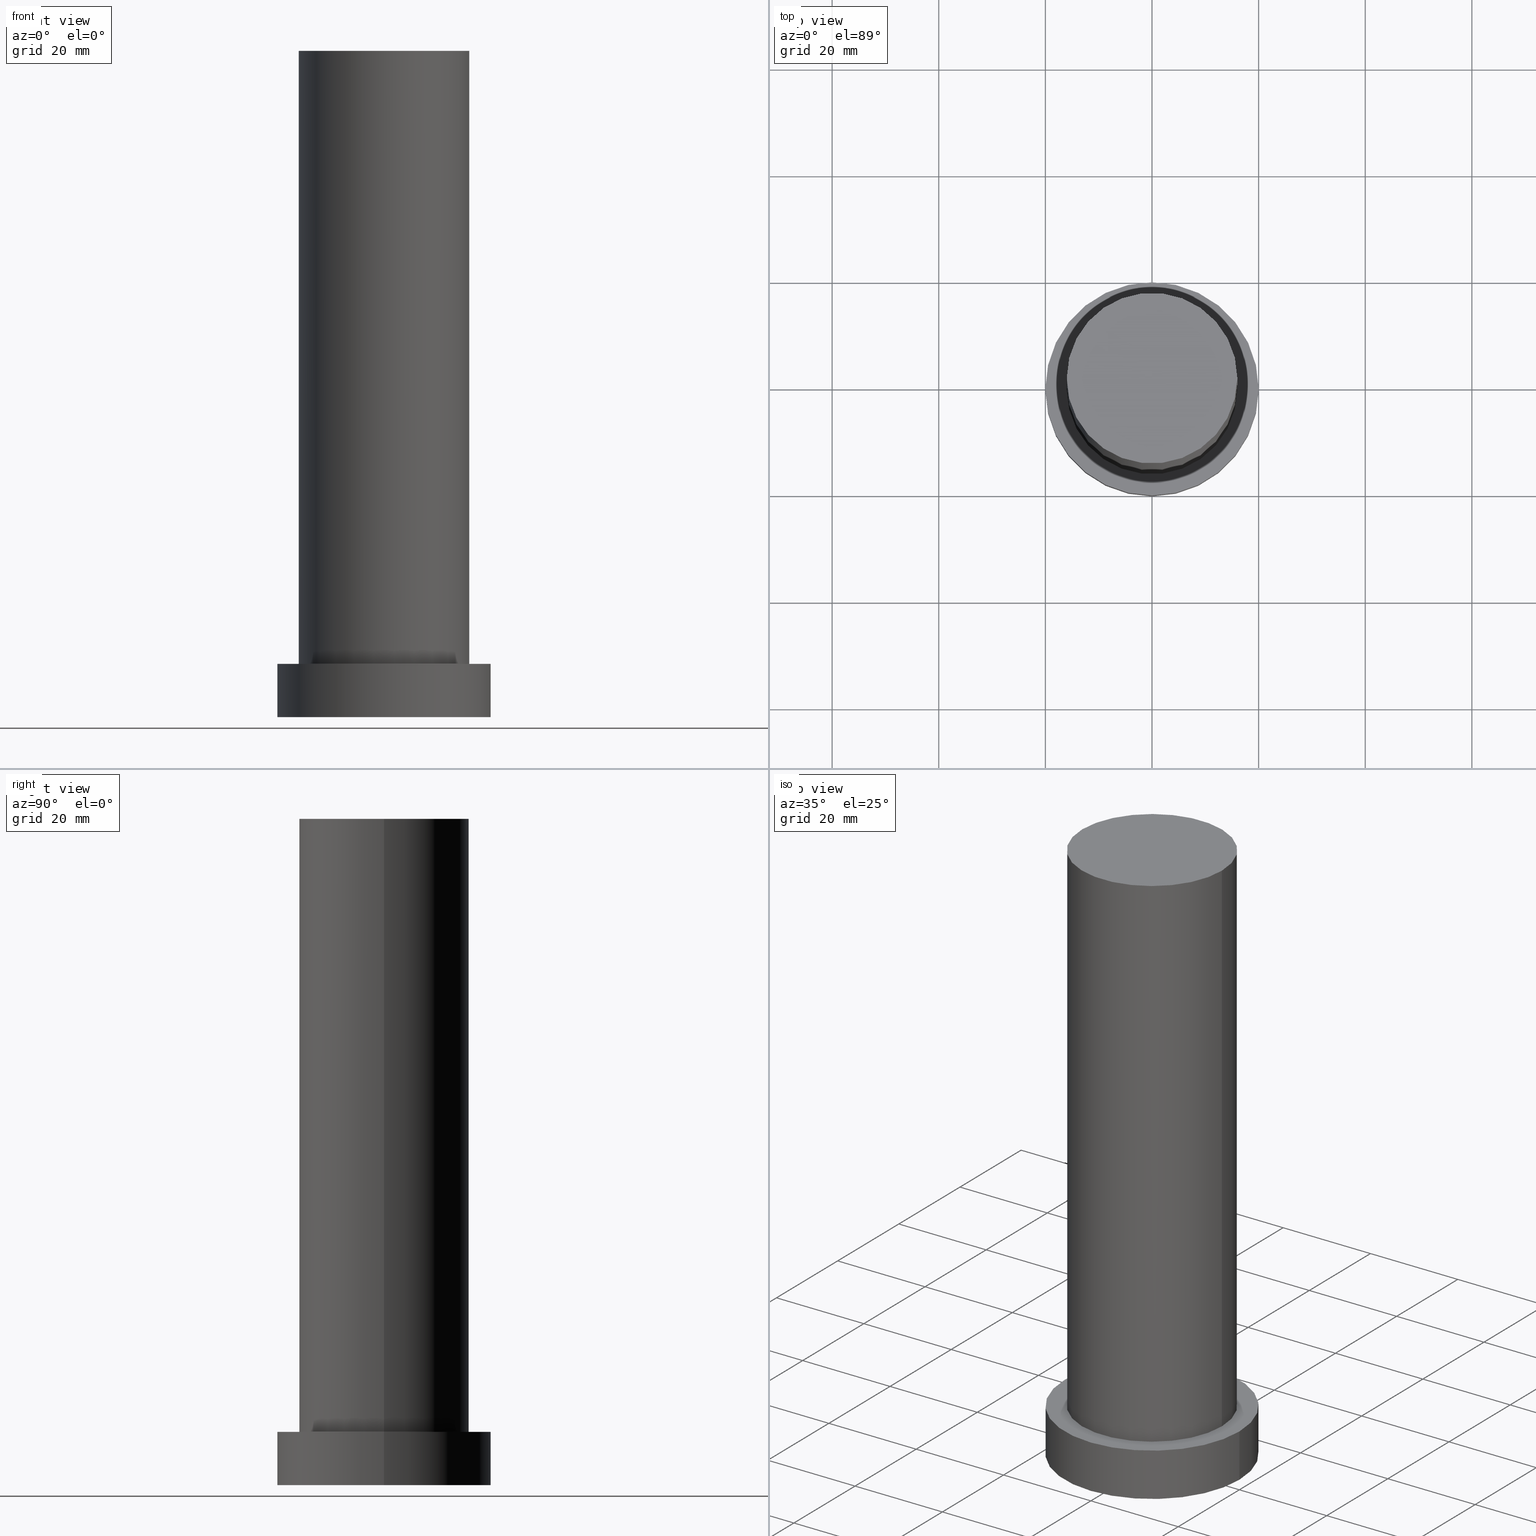
[diagram: canonical four-view strip — front | top / right | iso, engineering-drawing reading convention]
A machine part, canonical four-view strip (front | top / right | iso — engineering-drawing reading convention). The complete STEP part file that produces these views, byte-faithful:
ISO-10303-21;
HEADER;
FILE_DESCRIPTION (( 'STEP AP203' ),
    '1' );
FILE_NAME ('59e3.STEP',
    '2023-02-13T07:30:17',
    ( '' ),
    ( '' ),
    'SwSTEP 2.0',
    'SolidWorks 2019',
    '' );
FILE_SCHEMA (( 'CONFIG_CONTROL_DESIGN' ));
ENDSEC;

DATA;
#1 = LOCAL_TIME ( 8, 30, 17.00000000000000000, #212 ) ;
#2 = ORIENTED_EDGE ( 'NONE', *, *, #242, .F. ) ;
#3 = CARTESIAN_POINT ( 'NONE',  ( 20.00000000000000000, 2.449293598294706513E-15, 0.000000000000000000 ) ) ;
#4 = DIRECTION ( 'NONE',  ( 0.000000000000000000, 0.000000000000000000, 1.000000000000000000 ) ) ;
#5 = VERTEX_POINT ( 'NONE', #142 ) ;
#6 = DIRECTION ( 'NONE',  ( 0.000000000000000000, 0.000000000000000000, 1.000000000000000000 ) ) ;
#7 = ORIENTED_EDGE ( 'NONE', *, *, #92, .T. ) ;
#8 = PERSON_AND_ORGANIZATION ( #240, #178 ) ;
#9 = ORIENTED_EDGE ( 'NONE', *, *, #211, .T. ) ;
#10 = FACE_OUTER_BOUND ( 'NONE', #244, .T. ) ;
#11 = ADVANCED_FACE ( 'NONE', ( #118, #165 ), #248, .T. ) ;
#12 = DATE_AND_TIME ( #119, #209 ) ;
#13 = LINE ( 'NONE', #104, #189 ) ;
#14 = DIRECTION ( 'NONE',  ( 1.000000000000000000, 0.000000000000000000, 0.000000000000000000 ) ) ;
#15 = DIRECTION ( 'NONE',  ( -1.000000000000000000, 0.000000000000000000, 0.000000000000000000 ) ) ;
#16 = LOCAL_TIME ( 8, 30, 17.00000000000000000, #105 ) ;
#17 = EDGE_LOOP ( 'NONE', ( #245, #239, #9, #141 ) ) ;
#18 = ORIENTED_EDGE ( 'NONE', *, *, #237, .F. ) ;
#19 = DIRECTION ( 'NONE',  ( -0.000000000000000000, -0.000000000000000000, -1.000000000000000000 ) ) ;
#20 = DIRECTION ( 'NONE',  ( 1.000000000000000000, 0.000000000000000000, 0.000000000000000000 ) ) ;
#21 = ORIENTED_EDGE ( 'NONE', *, *, #157, .F. ) ;
#22 = PERSON_AND_ORGANIZATION_ROLE ( 'design_owner' ) ;
#23 = FACE_OUTER_BOUND ( 'NONE', #74, .T. ) ;
#24 = ORIENTED_EDGE ( 'NONE', *, *, #92, .F. ) ;
#25 = APPLICATION_PROTOCOL_DEFINITION ( 'international standard', 'config_control_design', 1994, #97 ) ;
#26 = DIRECTION ( 'NONE',  ( -0.000000000000000000, -0.000000000000000000, -1.000000000000000000 ) ) ;
#27 = ORIENTED_EDGE ( 'NONE', *, *, #176, .T. ) ;
#28 = AXIS2_PLACEMENT_3D ( 'NONE', #220, #36, #207 ) ;
#29 = MECHANICAL_CONTEXT ( 'NONE', #97, 'mechanical' ) ;
#30 = DIRECTION ( 'NONE',  ( -0.000000000000000000, -0.000000000000000000, -1.000000000000000000 ) ) ;
#31 = LOCAL_TIME ( 8, 30, 17.00000000000000000, #246 ) ;
#32 = DATE_AND_TIME ( #117, #1 ) ;
#33 =( NAMED_UNIT ( * ) PLANE_ANGLE_UNIT ( ) SI_UNIT ( $, .RADIAN. ) );
#34 = APPROVAL ( #194, 'NEUR�EN�' ) ;
#35 = DIRECTION ( 'NONE',  ( 1.000000000000000000, 0.000000000000000000, -0.000000000000000000 ) ) ;
#36 = DIRECTION ( 'NONE',  ( 0.000000000000000000, 0.000000000000000000, 1.000000000000000000 ) ) ;
#37 = ORIENTED_EDGE ( 'NONE', *, *, #216, .F. ) ;
#38 = ORIENTED_EDGE ( 'NONE', *, *, #203, .T. ) ;
#39 = AXIS2_PLACEMENT_3D ( 'NONE', #163, #155, #247 ) ;
#40 = AXIS2_PLACEMENT_3D ( 'NONE', #126, #107, #213 ) ;
#41 = LINE ( 'NONE', #106, #186 ) ;
#42 = ORIENTED_EDGE ( 'NONE', *, *, #198, .T. ) ;
#43 = VERTEX_POINT ( 'NONE', #208 ) ;
#44 = DIRECTION ( 'NONE',  ( 1.000000000000000000, 0.000000000000000000, 0.000000000000000000 ) ) ;
#45 = APPLICATION_PROTOCOL_DEFINITION ( 'international standard', 'config_control_design', 1994, #112 ) ;
#46 = AXIS2_PLACEMENT_3D ( 'NONE', #249, #48, #146 ) ;
#47 = APPROVAL_PERSON_ORGANIZATION ( #174, #88, #86 ) ;
#48 = DIRECTION ( 'NONE',  ( 0.000000000000000000, 0.000000000000000000, 1.000000000000000000 ) ) ;
#49 = DATE_AND_TIME ( #254, #16 ) ;
#50 = ADVANCED_FACE ( 'NONE', ( #152 ), #52, .T. ) ;
#51 = DATE_TIME_ROLE ( 'classification_date' ) ;
#52 = CYLINDRICAL_SURFACE ( 'NONE', #131, 20.00000000000000000 ) ;
#53 = ORIENTED_EDGE ( 'NONE', *, *, #157, .T. ) ;
#54 = EDGE_LOOP ( 'NONE', ( #160, #59 ) ) ;
#55 = APPROVAL_PERSON_ORGANIZATION ( #8, #164, #143 ) ;
#56 = CC_DESIGN_PERSON_AND_ORGANIZATION_ASSIGNMENT ( #206, #232, ( #243 ) ) ;
#57 = CARTESIAN_POINT ( 'NONE',  ( 0.000000000000000000, 0.000000000000000000, 125.0000000000000000 ) ) ;
#58 = AXIS2_PLACEMENT_3D ( 'NONE', #100, #161, #44 ) ;
#59 = ORIENTED_EDGE ( 'NONE', *, *, #237, .T. ) ;
#60 = PERSON_AND_ORGANIZATION ( #240, #178 ) ;
#61 = APPROVAL_DATE_TIME ( #12, #164 ) ;
#62 = CALENDAR_DATE ( 2023, 13, 2 ) ;
#63 = VECTOR ( 'NONE', #127, 1000.000000000000000 ) ;
#64 = CYLINDRICAL_SURFACE ( 'NONE', #129, 16.00000000000000000 ) ;
#65 = COORDINATED_UNIVERSAL_TIME_OFFSET ( 1, 0, .AHEAD. ) ;
#66 = DIRECTION ( 'NONE',  ( 1.000000000000000000, 0.000000000000000000, 0.000000000000000000 ) ) ;
#67 = CIRCLE ( 'NONE', #98, 20.00000000000000000 ) ;
#68 = ORIENTED_EDGE ( 'NONE', *, *, #203, .F. ) ;
#69 = CIRCLE ( 'NONE', #28, 20.00000000000000000 ) ;
#70 =( GEOMETRIC_REPRESENTATION_CONTEXT ( 3 ) GLOBAL_UNCERTAINTY_ASSIGNED_CONTEXT ( ( #93 ) ) GLOBAL_UNIT_ASSIGNED_CONTEXT ( ( #167, #33, #236 ) ) REPRESENTATION_CONTEXT ( 'NONE', 'WORKASPACE' ) );
#71 = PLANE ( 'NONE',  #111 ) ;
#72 = ADVANCED_FACE ( 'NONE', ( #85 ), #219, .F. ) ;
#73 = DIRECTION ( 'NONE',  ( -1.000000000000000000, 0.000000000000000000, 0.000000000000000000 ) ) ;
#74 = EDGE_LOOP ( 'NONE', ( #188, #53 ) ) ;
#75 = DIRECTION ( 'NONE',  ( 1.000000000000000000, 0.000000000000000000, -0.000000000000000000 ) ) ;
#76 = ORIENTED_EDGE ( 'NONE', *, *, #216, .T. ) ;
#77 = ORIENTED_EDGE ( 'NONE', *, *, #211, .F. ) ;
#78 = CARTESIAN_POINT ( 'NONE',  ( 0.000000000000000000, 0.000000000000000000, 10.00000000000000000 ) ) ;
#79 = PERSON_AND_ORGANIZATION_ROLE ( 'creator' ) ;
#80 = CC_DESIGN_PERSON_AND_ORGANIZATION_ASSIGNMENT ( #226, #230, ( #177 ) ) ;
#81 = APPROVAL_STATUS ( 'not_yet_approved' ) ;
#82 = CARTESIAN_POINT ( 'NONE',  ( 16.00000000000000000, 1.959434878635765131E-15, 10.00000000000000000 ) ) ;
#83 = CC_DESIGN_PERSON_AND_ORGANIZATION_ASSIGNMENT ( #96, #22, ( #179 ) ) ;
#84 = APPROVAL_STATUS ( 'not_yet_approved' ) ;
#85 = FACE_OUTER_BOUND ( 'NONE', #135, .T. ) ;
#86 = APPROVAL_ROLE ( '' ) ;
#87 = CC_DESIGN_APPROVAL ( #164, ( #177 ) ) ;
#88 = APPROVAL ( #84, 'NEUR�EN�' ) ;
#89 = EDGE_LOOP ( 'NONE', ( #18, #38, #7, #37 ) ) ;
#90 = VERTEX_POINT ( 'NONE', #238 ) ;
#91 = CARTESIAN_POINT ( 'NONE',  ( 0.000000000000000000, 0.000000000000000000, 10.00000000000000000 ) ) ;
#92 = EDGE_CURVE ( 'NONE', #95, #153, #69, .T. ) ;
#93 = UNCERTAINTY_MEASURE_WITH_UNIT (LENGTH_MEASURE( 1.000000000000000082E-05 ), #167, 'distance_accuracy_value', 'NONE');
#94 = CIRCLE ( 'NONE', #40, 16.00000000000000000 ) ;
#95 = VERTEX_POINT ( 'NONE', #3 ) ;
#96 = PERSON_AND_ORGANIZATION ( #240, #178 ) ;
#97 = APPLICATION_CONTEXT ( 'configuration controlled 3d designs of mechanical parts and assemblies' ) ;
#98 = AXIS2_PLACEMENT_3D ( 'NONE', #195, #229, #124 ) ;
#99 = VERTEX_POINT ( 'NONE', #205 ) ;
#100 = CARTESIAN_POINT ( 'NONE',  ( 0.000000000000000000, 0.000000000000000000, 0.000000000000000000 ) ) ;
#101 = APPROVAL_PERSON_ORGANIZATION ( #183, #34, #125 ) ;
#102 = CC_DESIGN_PERSON_AND_ORGANIZATION_ASSIGNMENT ( #166, #252, ( #177 ) ) ;
#103 = SECURITY_CLASSIFICATION_LEVEL ( 'unclassified' ) ;
#104 = CARTESIAN_POINT ( 'NONE',  ( -20.00000000000000000, 0.000000000000000000, 10.00000000000000000 ) ) ;
#105 = COORDINATED_UNIVERSAL_TIME_OFFSET ( 1, 0, .AHEAD. ) ;
#106 = CARTESIAN_POINT ( 'NONE',  ( 16.00000000000000000, 1.959434878635765131E-15, 125.0000000000000000 ) ) ;
#107 = DIRECTION ( 'NONE',  ( 0.000000000000000000, 0.000000000000000000, 1.000000000000000000 ) ) ;
#108 = APPROVAL_DATE_TIME ( #234, #88 ) ;
#109 = ADVANCED_FACE ( 'NONE', ( #115 ), #181, .T. ) ;
#110 = ORIENTED_EDGE ( 'NONE', *, *, #184, .F. ) ;
#111 = AXIS2_PLACEMENT_3D ( 'NONE', #224, #6, #75 ) ;
#112 = APPLICATION_CONTEXT ( 'configuration controlled 3d designs of mechanical parts and assemblies' ) ;
#113 = CARTESIAN_POINT ( 'NONE',  ( 0.000000000000000000, 0.000000000000000000, 125.0000000000000000 ) ) ;
#114 = DESIGN_CONTEXT ( 'detailed design', #112, 'design' ) ;
#115 = FACE_OUTER_BOUND ( 'NONE', #17, .T. ) ;
#116 = EDGE_LOOP ( 'NONE', ( #68, #2, #76, #225 ) ) ;
#117 = CALENDAR_DATE ( 2023, 13, 2 ) ;
#118 = FACE_BOUND ( 'NONE', #222, .T. ) ;
#119 = CALENDAR_DATE ( 2023, 13, 2 ) ;
#120 = DIRECTION ( 'NONE',  ( 1.000000000000000000, 0.000000000000000000, -0.000000000000000000 ) ) ;
#121 = ADVANCED_FACE ( 'NONE', ( #202 ), #138, .T. ) ;
#122 = CARTESIAN_POINT ( 'NONE',  ( -16.00000000000000000, 0.000000000000000000, 125.0000000000000000 ) ) ;
#123 = AXIS2_PLACEMENT_3D ( 'NONE', #57, #4, #20 ) ;
#124 = DIRECTION ( 'NONE',  ( 1.000000000000000000, 0.000000000000000000, 0.000000000000000000 ) ) ;
#125 = APPROVAL_ROLE ( '' ) ;
#126 = CARTESIAN_POINT ( 'NONE',  ( 0.000000000000000000, 0.000000000000000000, 10.00000000000000000 ) ) ;
#127 = DIRECTION ( 'NONE',  ( -0.000000000000000000, -0.000000000000000000, -1.000000000000000000 ) ) ;
#128 = AXIS2_PLACEMENT_3D ( 'NONE', #144, #228, #120 ) ;
#129 = AXIS2_PLACEMENT_3D ( 'NONE', #171, #30, #233 ) ;
#130 = DIRECTION ( 'NONE',  ( -0.000000000000000000, -0.000000000000000000, -1.000000000000000000 ) ) ;
#131 = AXIS2_PLACEMENT_3D ( 'NONE', #201, #130, #15 ) ;
#132 = CIRCLE ( 'NONE', #170, 20.00000000000000000 ) ;
#133 = ORIENTED_EDGE ( 'NONE', *, *, #198, .F. ) ;
#134 = EDGE_CURVE ( 'NONE', #90, #99, #215, .T. ) ;
#135 = EDGE_LOOP ( 'NONE', ( #110, #24 ) ) ;
#136 = ADVANCED_BREP_SHAPE_REPRESENTATION ( '59e3', ( #154, #58 ), #70 ) ;
#137 = CIRCLE ( 'NONE', #46, 16.00000000000000000 ) ;
#138 = CYLINDRICAL_SURFACE ( 'NONE', #218, 20.00000000000000000 ) ;
#139 = CC_DESIGN_SECURITY_CLASSIFICATION ( #243, ( #177 ) ) ;
#140 = CC_DESIGN_APPROVAL ( #34, ( #250 ) ) ;
#141 = ORIENTED_EDGE ( 'NONE', *, *, #235, .T. ) ;
#142 = CARTESIAN_POINT ( 'NONE',  ( 20.00000000000000000, 2.449293598294706513E-15, 10.00000000000000000 ) ) ;
#143 = APPROVAL_ROLE ( '' ) ;
#144 = CARTESIAN_POINT ( 'NONE',  ( 0.000000000000000000, 0.000000000000000000, 10.00000000000000000 ) ) ;
#145 = ADVANCED_FACE ( 'NONE', ( #23 ), #71, .T. ) ;
#146 = DIRECTION ( 'NONE',  ( 1.000000000000000000, 0.000000000000000000, 0.000000000000000000 ) ) ;
#147 = APPROVAL_DATE_TIME ( #32, #34 ) ;
#148 = LINE ( 'NONE', #122, #63 ) ;
#149 = CIRCLE ( 'NONE', #39, 16.00000000000000000 ) ;
#150 = CC_DESIGN_PERSON_AND_ORGANIZATION_ASSIGNMENT ( #60, #79, ( #250 ) ) ;
#151 = DIRECTION ( 'NONE',  ( 0.000000000000000000, 0.000000000000000000, 1.000000000000000000 ) ) ;
#152 = FACE_OUTER_BOUND ( 'NONE', #89, .T. ) ;
#153 = VERTEX_POINT ( 'NONE', #159 ) ;
#154 = MANIFOLD_SOLID_BREP ( 'P�idat vysunut�m3', #251 ) ;
#155 = DIRECTION ( 'NONE',  ( 0.000000000000000000, 0.000000000000000000, 1.000000000000000000 ) ) ;
#156 = LOCAL_TIME ( 8, 30, 17.00000000000000000, #65 ) ;
#157 = EDGE_CURVE ( 'NONE', #99, #90, #149, .T. ) ;
#158 = DIRECTION ( 'NONE',  ( -1.000000000000000000, 0.000000000000000000, 0.000000000000000000 ) ) ;
#159 = CARTESIAN_POINT ( 'NONE',  ( -20.00000000000000000, 0.000000000000000000, 0.000000000000000000 ) ) ;
#160 = ORIENTED_EDGE ( 'NONE', *, *, #242, .T. ) ;
#161 = DIRECTION ( 'NONE',  ( 0.000000000000000000, 0.000000000000000000, 1.000000000000000000 ) ) ;
#162 = AXIS2_PLACEMENT_3D ( 'NONE', #113, #19, #73 ) ;
#163 = CARTESIAN_POINT ( 'NONE',  ( 0.000000000000000000, 0.000000000000000000, 125.0000000000000000 ) ) ;
#164 = APPROVAL ( #81, 'NEUR�EN�' ) ;
#165 = FACE_OUTER_BOUND ( 'NONE', #54, .T. ) ;
#166 = PERSON_AND_ORGANIZATION ( #240, #178 ) ;
#167 =( LENGTH_UNIT ( ) NAMED_UNIT ( * ) SI_UNIT ( .MILLI., .METRE. ) );
#168 = DIRECTION ( 'NONE',  ( 0.000000000000000000, 0.000000000000000000, 1.000000000000000000 ) ) ;
#169 = COORDINATED_UNIVERSAL_TIME_OFFSET ( 1, 0, .AHEAD. ) ;
#170 = AXIS2_PLACEMENT_3D ( 'NONE', #78, #173, #66 ) ;
#171 = CARTESIAN_POINT ( 'NONE',  ( 0.000000000000000000, 0.000000000000000000, 125.0000000000000000 ) ) ;
#172 = SHAPE_DEFINITION_REPRESENTATION ( #217, #136 ) ;
#173 = DIRECTION ( 'NONE',  ( 0.000000000000000000, 0.000000000000000000, 1.000000000000000000 ) ) ;
#174 = PERSON_AND_ORGANIZATION ( #240, #178 ) ;
#175 = CALENDAR_DATE ( 2023, 13, 2 ) ;
#176 = EDGE_CURVE ( 'NONE', #99, #241, #41, .T. ) ;
#177 = PRODUCT_DEFINITION_FORMATION_WITH_SPECIFIED_SOURCE ( 'LIBOVOLN�', '', #179, .NOT_KNOWN. ) ;
#178 = ORGANIZATION ( 'NEUR�EN�', 'NEUR�EN�', '' ) ;
#179 = PRODUCT ( '59e3', '59e3', '', ( #29 ) ) ;
#180 = CC_DESIGN_DATE_AND_TIME_ASSIGNMENT ( #190, #185, ( #250 ) ) ;
#181 = CYLINDRICAL_SURFACE ( 'NONE', #162, 16.00000000000000000 ) ;
#182 = ORIENTED_EDGE ( 'NONE', *, *, #235, .F. ) ;
#183 = PERSON_AND_ORGANIZATION ( #240, #178 ) ;
#184 = EDGE_CURVE ( 'NONE', #153, #95, #67, .T. ) ;
#185 = DATE_TIME_ROLE ( 'creation_date' ) ;
#186 = VECTOR ( 'NONE', #26, 1000.000000000000000 ) ;
#187 = DIRECTION ( 'NONE',  ( -0.000000000000000000, -0.000000000000000000, -1.000000000000000000 ) ) ;
#188 = ORIENTED_EDGE ( 'NONE', *, *, #134, .T. ) ;
#189 = VECTOR ( 'NONE', #192, 1000.000000000000000 ) ;
#190 = DATE_AND_TIME ( #62, #31 ) ;
#191 = LINE ( 'NONE', #210, #199 ) ;
#192 = DIRECTION ( 'NONE',  ( -0.000000000000000000, -0.000000000000000000, -1.000000000000000000 ) ) ;
#193 = PRODUCT_RELATED_PRODUCT_CATEGORY ( 'detail', '', ( #179 ) ) ;
#194 = APPROVAL_STATUS ( 'not_yet_approved' ) ;
#195 = CARTESIAN_POINT ( 'NONE',  ( 0.000000000000000000, 0.000000000000000000, 0.000000000000000000 ) ) ;
#196 = AXIS2_PLACEMENT_3D ( 'NONE', #223, #151, #35 ) ;
#197 = CARTESIAN_POINT ( 'NONE',  ( 0.000000000000000000, 0.000000000000000000, 10.00000000000000000 ) ) ;
#198 = EDGE_CURVE ( 'NONE', #241, #227, #137, .T. ) ;
#199 = VECTOR ( 'NONE', #187, 1000.000000000000000 ) ;
#200 = AXIS2_PLACEMENT_3D ( 'NONE', #197, #168, #14 ) ;
#201 = CARTESIAN_POINT ( 'NONE',  ( 0.000000000000000000, 0.000000000000000000, 10.00000000000000000 ) ) ;
#202 = FACE_OUTER_BOUND ( 'NONE', #116, .T. ) ;
#203 = EDGE_CURVE ( 'NONE', #5, #95, #191, .T. ) ;
#204 = DIRECTION ( 'NONE',  ( -0.000000000000000000, -0.000000000000000000, -1.000000000000000000 ) ) ;
#205 = CARTESIAN_POINT ( 'NONE',  ( 16.00000000000000000, 1.959434878635765131E-15, 125.0000000000000000 ) ) ;
#206 = PERSON_AND_ORGANIZATION ( #240, #178 ) ;
#207 = DIRECTION ( 'NONE',  ( 1.000000000000000000, 0.000000000000000000, 0.000000000000000000 ) ) ;
#208 = CARTESIAN_POINT ( 'NONE',  ( -20.00000000000000000, 0.000000000000000000, 10.00000000000000000 ) ) ;
#209 = LOCAL_TIME ( 8, 30, 17.00000000000000000, #169 ) ;
#210 = CARTESIAN_POINT ( 'NONE',  ( 20.00000000000000000, 2.449293598294706513E-15, 10.00000000000000000 ) ) ;
#211 = EDGE_CURVE ( 'NONE', #90, #227, #148, .T. ) ;
#212 = COORDINATED_UNIVERSAL_TIME_OFFSET ( 1, 0, .AHEAD. ) ;
#213 = DIRECTION ( 'NONE',  ( 1.000000000000000000, 0.000000000000000000, 0.000000000000000000 ) ) ;
#214 = CARTESIAN_POINT ( 'NONE',  ( -16.00000000000000000, 0.000000000000000000, 10.00000000000000000 ) ) ;
#215 = CIRCLE ( 'NONE', #123, 16.00000000000000000 ) ;
#216 = EDGE_CURVE ( 'NONE', #43, #153, #13, .T. ) ;
#217 = PRODUCT_DEFINITION_SHAPE ( 'NONE', 'NONE',  #250 ) ;
#218 = AXIS2_PLACEMENT_3D ( 'NONE', #91, #204, #158 ) ;
#219 = PLANE ( 'NONE',  #196 ) ;
#220 = CARTESIAN_POINT ( 'NONE',  ( 0.000000000000000000, 0.000000000000000000, 0.000000000000000000 ) ) ;
#221 = ADVANCED_FACE ( 'NONE', ( #10 ), #64, .T. ) ;
#222 = EDGE_LOOP ( 'NONE', ( #182, #133 ) ) ;
#223 = CARTESIAN_POINT ( 'NONE',  ( 0.000000000000000000, 0.000000000000000000, 0.000000000000000000 ) ) ;
#224 = CARTESIAN_POINT ( 'NONE',  ( 0.000000000000000000, 0.000000000000000000, 125.0000000000000000 ) ) ;
#225 = ORIENTED_EDGE ( 'NONE', *, *, #184, .T. ) ;
#226 = PERSON_AND_ORGANIZATION ( #240, #178 ) ;
#227 = VERTEX_POINT ( 'NONE', #214 ) ;
#228 = DIRECTION ( 'NONE',  ( 0.000000000000000000, 0.000000000000000000, 1.000000000000000000 ) ) ;
#229 = DIRECTION ( 'NONE',  ( 0.000000000000000000, 0.000000000000000000, 1.000000000000000000 ) ) ;
#230 = PERSON_AND_ORGANIZATION_ROLE ( 'design_supplier' ) ;
#231 = CC_DESIGN_DATE_AND_TIME_ASSIGNMENT ( #49, #51, ( #243 ) ) ;
#232 = PERSON_AND_ORGANIZATION_ROLE ( 'classification_officer' ) ;
#233 = DIRECTION ( 'NONE',  ( -1.000000000000000000, 0.000000000000000000, 0.000000000000000000 ) ) ;
#234 = DATE_AND_TIME ( #175, #156 ) ;
#235 = EDGE_CURVE ( 'NONE', #227, #241, #94, .T. ) ;
#236 =( NAMED_UNIT ( * ) SI_UNIT ( $, .STERADIAN. ) SOLID_ANGLE_UNIT ( ) );
#237 = EDGE_CURVE ( 'NONE', #5, #43, #253, .T. ) ;
#238 = CARTESIAN_POINT ( 'NONE',  ( -16.00000000000000000, 0.000000000000000000, 125.0000000000000000 ) ) ;
#239 = ORIENTED_EDGE ( 'NONE', *, *, #134, .F. ) ;
#240 = PERSON ( 'NEUR�EN�', 'NEUR�EN�', 'NEUR�EN�', ('NEUR�EN�'), ('NEUR�EN�'), ('NEUR�EN�') ) ;
#241 = VERTEX_POINT ( 'NONE', #82 ) ;
#242 = EDGE_CURVE ( 'NONE', #43, #5, #132, .T. ) ;
#243 = SECURITY_CLASSIFICATION ( '', '', #103 ) ;
#244 = EDGE_LOOP ( 'NONE', ( #21, #27, #42, #77 ) ) ;
#245 = ORIENTED_EDGE ( 'NONE', *, *, #176, .F. ) ;
#246 = COORDINATED_UNIVERSAL_TIME_OFFSET ( 1, 0, .AHEAD. ) ;
#247 = DIRECTION ( 'NONE',  ( 1.000000000000000000, 0.000000000000000000, 0.000000000000000000 ) ) ;
#248 = PLANE ( 'NONE',  #128 ) ;
#249 = CARTESIAN_POINT ( 'NONE',  ( 0.000000000000000000, 0.000000000000000000, 10.00000000000000000 ) ) ;
#250 = PRODUCT_DEFINITION ( 'NEZN�M�', '', #177, #114 ) ;
#251 = CLOSED_SHELL ( 'NONE', ( #221, #50, #121, #11, #72, #109, #145 ) ) ;
#252 = PERSON_AND_ORGANIZATION_ROLE ( 'creator' ) ;
#253 = CIRCLE ( 'NONE', #200, 20.00000000000000000 ) ;
#254 = CALENDAR_DATE ( 2023, 13, 2 ) ;
#255 = CC_DESIGN_APPROVAL ( #88, ( #243 ) ) ;
ENDSEC;
END-ISO-10303-21;
